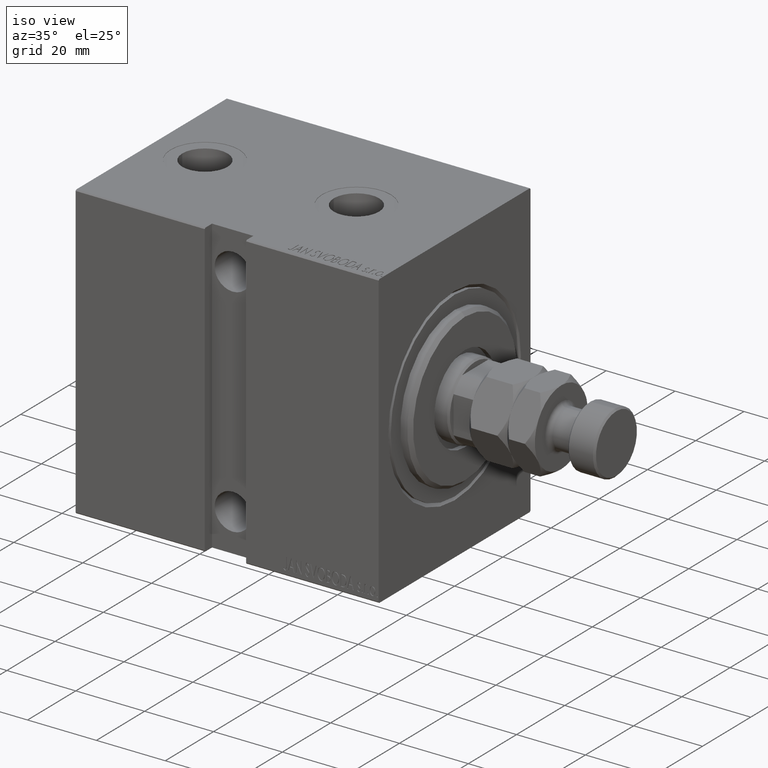
[diagram: clean part render]
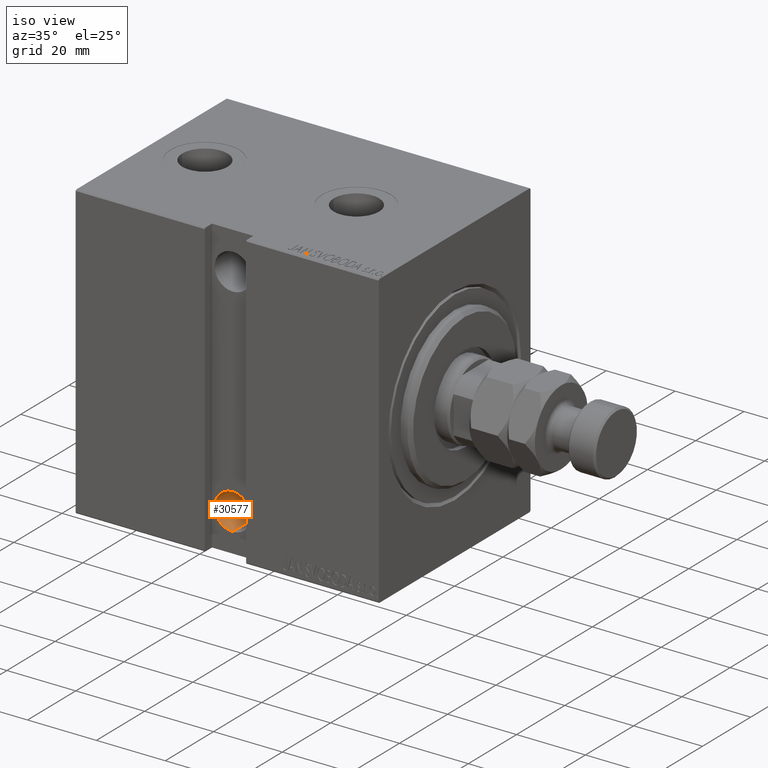
[diagram: same view with one face highlighted and labeled with its STEP entity id]
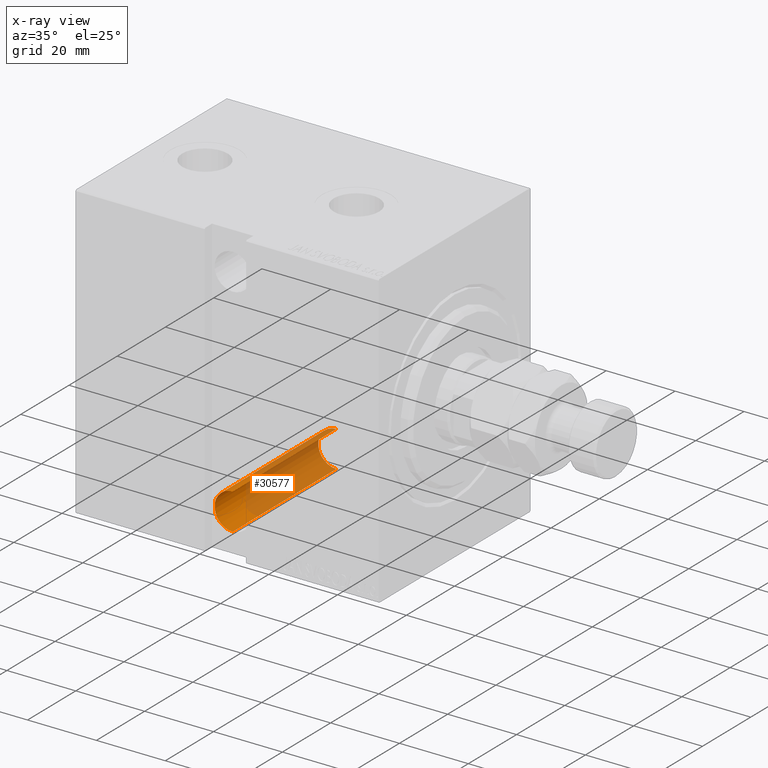
[diagram: x-ray of the same camera — body ghosted, the highlighted face saturated]
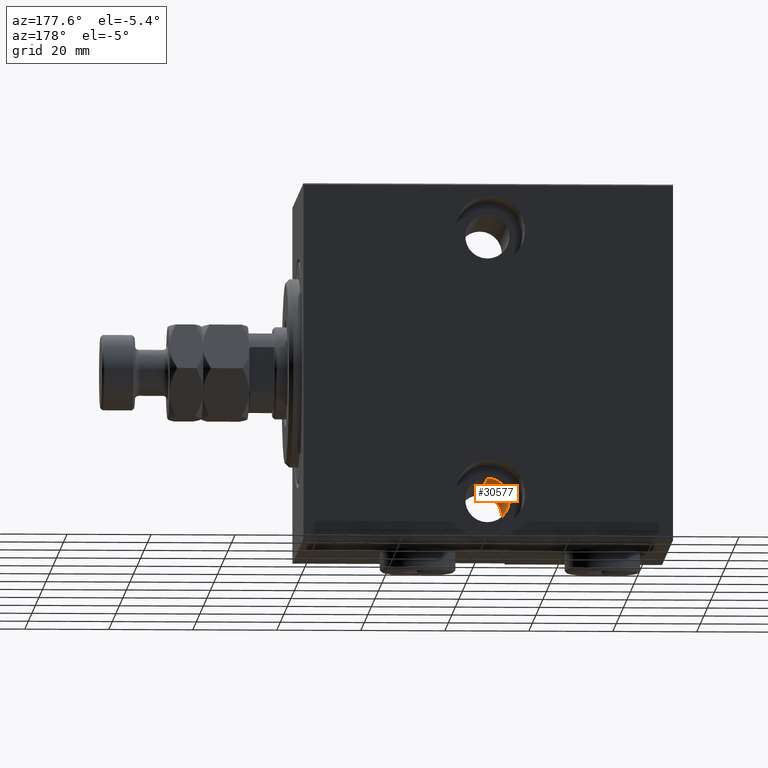
[diagram: same view with one face highlighted and labeled with its STEP entity id]
A machine part, iso view. The second image highlights one B-rep face of the part: STEP entity #30577.
The next image is the same camera in x-ray: the body ghosted, the highlighted face saturated — about 72% of this face is hidden behind the body in this view.
A second angle (auxiliary view) of the same face is appended — the face is thin or edge-on in the first view.
In plain terms, the highlighted cylindrical surface (edge-blend (fillet) strip) has radius 5.25 mm, axis along (0, -1, 0).
Its self-contained STEP definition (entity closure, byte-faithful):
#215 = VERTEX_POINT ( 'NONE', #40077 ) ;
#637 = CARTESIAN_POINT ( 'NONE',  ( 44.50000000000002132, 28.50000000000001066, -31.50000000000000000 ) ) ;
#703 = EDGE_CURVE ( 'NONE', #26999, #35270, #5718, .T. ) ;
#5023 = DIRECTION ( 'NONE',  ( 0.000000000000000000, 0.000000000000000000, -1.000000000000000000 ) ) ;
#5718 = LINE ( 'NONE', #26495, #32651 ) ;
#6712 = CARTESIAN_POINT ( 'NONE',  ( 44.50000000000002132, -31.50000000000002842, -36.75000000000000000 ) ) ;
#9189 = DIRECTION ( 'NONE',  ( -0.000000000000000000, 1.000000000000000000, -0.000000000000000000 ) ) ;
#12054 = CARTESIAN_POINT ( 'NONE',  ( 44.50000000000002132, 28.50000000000001066, -36.75000000000000000 ) ) ;
#12439 = CIRCLE ( 'NONE', #13915, 5.249999999999997335 ) ;
#13915 = AXIS2_PLACEMENT_3D ( 'NONE', #22152, #36237, #43889 ) ;
#17317 = DIRECTION ( 'NONE',  ( -0.000000000000000000, 1.000000000000000000, -0.000000000000000000 ) ) ;
#18431 = VERTEX_POINT ( 'NONE', #12054 ) ;
#18976 = ORIENTED_EDGE ( 'NONE', *, *, #703, .T. ) ;
#20463 = FACE_OUTER_BOUND ( 'NONE', #21438, .T. ) ;
#21142 = DIRECTION ( 'NONE',  ( 0.000000000000000000, 0.000000000000000000, 1.000000000000000000 ) ) ;
#21405 = VECTOR ( 'NONE', #17317, 1000.000000000000000 ) ;
#21438 = EDGE_LOOP ( 'NONE', ( #43740, #39796, #18976, #41526 ) ) ;
#22152 = CARTESIAN_POINT ( 'NONE',  ( 44.50000000000002132, -14.49999999999999822, -31.50000000000000000 ) ) ;
#23928 = DIRECTION ( 'NONE',  ( -0.000000000000000000, 1.000000000000000000, -0.000000000000000000 ) ) ;
#24364 = EDGE_CURVE ( 'NONE', #26999, #215, #12439, .T. ) ;
#26495 = CARTESIAN_POINT ( 'NONE',  ( 44.50000000000002132, -31.50000000000002842, -26.25000000000000355 ) ) ;
#26499 = CIRCLE ( 'NONE', #37621, 5.249999999999997335 ) ;
#26999 = VERTEX_POINT ( 'NONE', #45442 ) ;
#28443 = EDGE_CURVE ( 'NONE', #215, #18431, #45534, .T. ) ;
#30463 = EDGE_CURVE ( 'NONE', #18431, #35270, #26499, .T. ) ;
#30577 = ADVANCED_FACE ( 'NONE', ( #20463 ), #41955, .F. ) ;
#32651 = VECTOR ( 'NONE', #9189, 1000.000000000000000 ) ;
#32949 = DIRECTION ( 'NONE',  ( 0.000000000000000000, -1.000000000000000000, 0.000000000000000000 ) ) ;
#35270 = VERTEX_POINT ( 'NONE', #45490 ) ;
#36237 = DIRECTION ( 'NONE',  ( -0.000000000000000000, 1.000000000000000000, -1.963837897332234442E-16 ) ) ;
#37621 = AXIS2_PLACEMENT_3D ( 'NONE', #637, #32949, #5023 ) ;
#38252 = CARTESIAN_POINT ( 'NONE',  ( 44.50000000000002132, -31.50000000000002842, -31.50000000000000000 ) ) ;
#39796 = ORIENTED_EDGE ( 'NONE', *, *, #24364, .F. ) ;
#39827 = AXIS2_PLACEMENT_3D ( 'NONE', #38252, #23928, #21142 ) ;
#40077 = CARTESIAN_POINT ( 'NONE',  ( 44.50000000000002132, -14.50000000000000000, -36.75000000000000000 ) ) ;
#41526 = ORIENTED_EDGE ( 'NONE', *, *, #30463, .F. ) ;
#41955 = CYLINDRICAL_SURFACE ( 'NONE', #39827, 5.249999999999997335 ) ;
#43740 = ORIENTED_EDGE ( 'NONE', *, *, #28443, .F. ) ;
#43889 = DIRECTION ( 'NONE',  ( 0.000000000000000000, -3.304235192336776991E-16, -1.000000000000000000 ) ) ;
#45442 = CARTESIAN_POINT ( 'NONE',  ( 44.50000000000002132, -14.49999999999999645, -26.25000000000000355 ) ) ;
#45490 = CARTESIAN_POINT ( 'NONE',  ( 44.50000000000002132, 28.50000000000001066, -26.25000000000000355 ) ) ;
#45534 = LINE ( 'NONE', #6712, #21405 ) ;